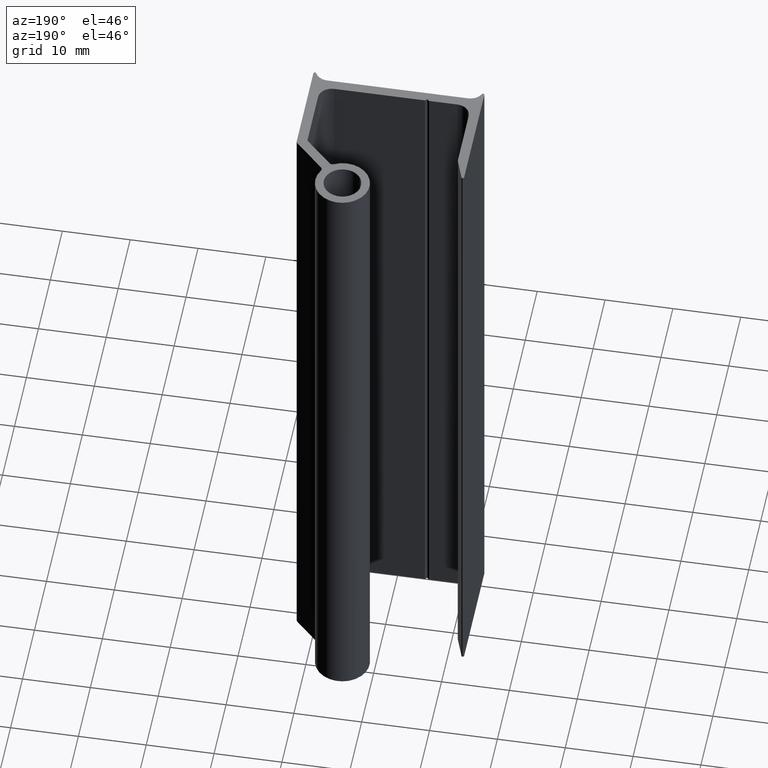
[diagram: clean part render]
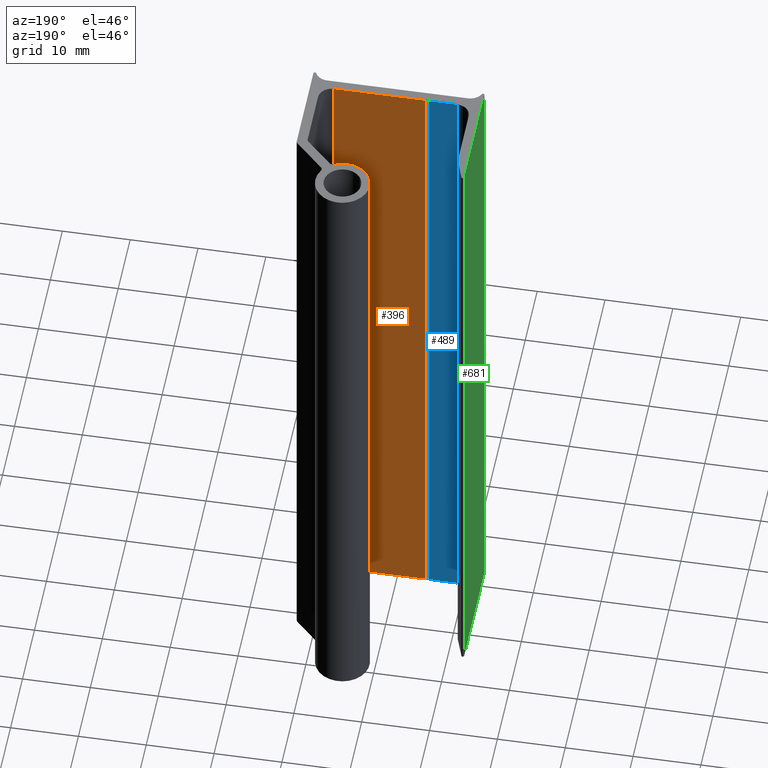
[diagram: same view with three faces highlighted in distinct colors, each labeled with its STEP entity id]
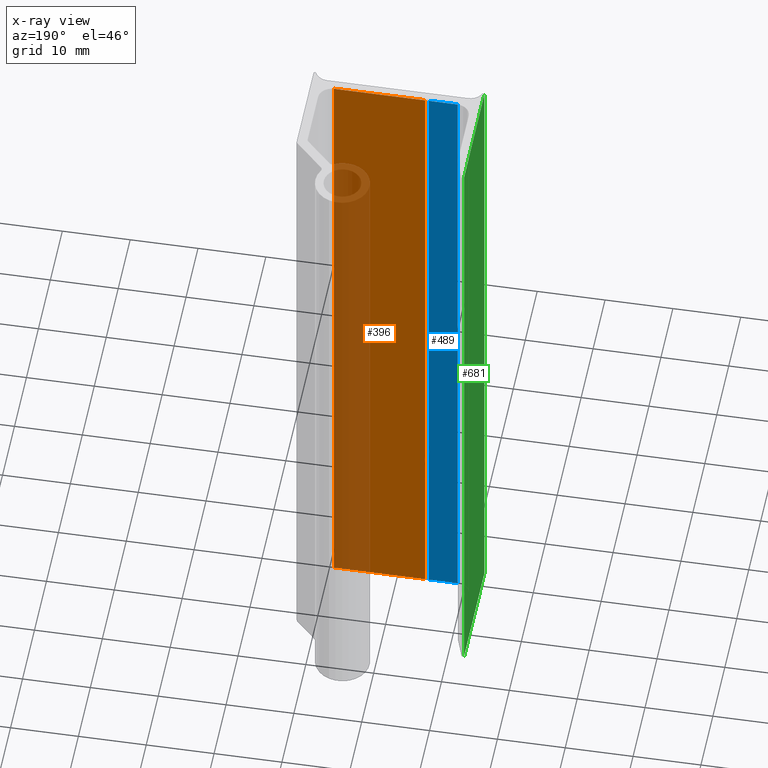
[diagram: x-ray of the same camera — body ghosted, the three highlighted faces saturated]
A machine part, auxiliary view with three faces highlighted in distinct colors.
The next image is the same camera in x-ray (body ghosted, the three faces saturated) — at least one of them is partly hidden behind the body in this view.
Their STEP definitions:

[orange] entity #396 — the highlighted planar face has unit normal (0, 1, 0).
#338=CARTESIAN_POINT('',(9.099999999986380,1.499999999995794,0.0));
#339=VERTEX_POINT('',#338);
#347=CARTESIAN_POINT('',(9.099999999986380,1.499999999995794,100.0));
#348=VERTEX_POINT('',#347);
#349=CARTESIAN_POINT('',(9.099999999986380,1.499999999995794,0.0));
#350=DIRECTION('',(0.0,0.0,1.0));
#351=VECTOR('',#350,100.0);
#352=LINE('',#349,#351);
#353=EDGE_CURVE('',#339,#348,#352,.T.);
#366=CARTESIAN_POINT('',(9.099999999986380,1.499999999995794,0.0));
#367=DIRECTION('',(0.0,1.0,0.0));
#368=DIRECTION('',(-1.0,0.0,0.0));
#369=AXIS2_PLACEMENT_3D('',#366,#367,#368);
#370=PLANE('',#369);
#371=CARTESIAN_POINT('',(-4.300000000013938,1.499999999995794,0.0));
#372=VERTEX_POINT('',#371);
#373=CARTESIAN_POINT('',(9.099999999986380,1.499999999995794,0.0));
#374=DIRECTION('',(-1.0,0.0,0.0));
#375=VECTOR('',#374,13.400000000000318);
#376=LINE('',#373,#375);
#377=EDGE_CURVE('',#339,#372,#376,.T.);
#378=ORIENTED_EDGE('',*,*,#377,.T.);
#379=CARTESIAN_POINT('',(-4.300000000013938,1.499999999995794,100.0));
#380=VERTEX_POINT('',#379);
#381=CARTESIAN_POINT('',(-4.300000000013938,1.499999999995794,0.0));
#382=DIRECTION('',(0.0,0.0,1.0));
#383=VECTOR('',#382,100.0);
#384=LINE('',#381,#383);
#385=EDGE_CURVE('',#372,#380,#384,.T.);
#386=ORIENTED_EDGE('',*,*,#385,.T.);
#387=CARTESIAN_POINT('',(9.099999999986380,1.499999999995794,100.0));
#388=DIRECTION('',(-1.0,0.0,0.0));
#389=VECTOR('',#388,13.400000000000318);
#390=LINE('',#387,#389);
#391=EDGE_CURVE('',#348,#380,#390,.T.);
#392=ORIENTED_EDGE('',*,*,#391,.F.);
#393=ORIENTED_EDGE('',*,*,#353,.F.);
#394=EDGE_LOOP('',(#378,#386,#392,#393));
#395=FACE_OUTER_BOUND('',#394,.T.);
#396=ADVANCED_FACE('',(#395),#370,.T.);

[blue] entity #489 — the highlighted planar face has unit normal (0, 1, 0).
#433=CARTESIAN_POINT('',(-4.899999999982811,1.499999999992326,0.0));
#434=VERTEX_POINT('',#433);
#441=CARTESIAN_POINT('',(-4.899999999982811,1.499999999992326,100.0));
#442=VERTEX_POINT('',#441);
#443=CARTESIAN_POINT('',(-4.899999999982811,1.499999999992326,0.0));
#444=DIRECTION('',(0.0,0.0,1.0));
#445=VECTOR('',#444,100.0);
#446=LINE('',#443,#445);
#447=EDGE_CURVE('',#434,#442,#446,.T.);
#459=CARTESIAN_POINT('',(-4.899999999982811,1.499999999992326,0.0));
#460=DIRECTION('',(0.0,1.0,0.0));
#461=DIRECTION('',(-1.0,0.0,0.0));
#462=AXIS2_PLACEMENT_3D('',#459,#460,#461);
#463=PLANE('',#462);
#464=CARTESIAN_POINT('',(-9.099999999982742,1.499999999992440,0.0));
#465=VERTEX_POINT('',#464);
#466=CARTESIAN_POINT('',(-4.899999999982811,1.499999999992326,0.0));
#467=DIRECTION('',(-1.0,0.0,0.0));
#468=VECTOR('',#467,4.199999999999932);
#469=LINE('',#466,#468);
#470=EDGE_CURVE('',#434,#465,#469,.T.);
#471=ORIENTED_EDGE('',*,*,#470,.T.);
#472=CARTESIAN_POINT('',(-9.099999999982742,1.499999999992440,100.0));
#473=VERTEX_POINT('',#472);
#474=CARTESIAN_POINT('',(-9.099999999982742,1.499999999992440,0.0));
#475=DIRECTION('',(0.0,0.0,1.0));
#476=VECTOR('',#475,100.0);
#477=LINE('',#474,#476);
#478=EDGE_CURVE('',#465,#473,#477,.T.);
#479=ORIENTED_EDGE('',*,*,#478,.T.);
#480=CARTESIAN_POINT('',(-4.899999999982811,1.499999999992326,100.0));
#481=DIRECTION('',(-1.0,0.0,0.0));
#482=VECTOR('',#481,4.199999999999932);
#483=LINE('',#480,#482);
#484=EDGE_CURVE('',#442,#473,#483,.T.);
#485=ORIENTED_EDGE('',*,*,#484,.F.);
#486=ORIENTED_EDGE('',*,*,#447,.F.);
#487=EDGE_LOOP('',(#471,#479,#485,#486));
#488=FACE_OUTER_BOUND('',#487,.T.);
#489=ADVANCED_FACE('',(#488),#463,.T.);

[green] entity #681 — the highlighted planar face has unit normal (-1, 0, 0).
#623=CARTESIAN_POINT('',(-12.599999999982742,15.798744151822405,0.0));
#624=VERTEX_POINT('',#623);
#632=CARTESIAN_POINT('',(-12.599999999982742,15.798744151822405,100.0));
#633=VERTEX_POINT('',#632);
#634=CARTESIAN_POINT('',(-12.599999999982742,15.798744151822405,0.0));
#635=DIRECTION('',(0.0,0.0,1.0));
#636=VECTOR('',#635,100.0);
#637=LINE('',#634,#636);
#638=EDGE_CURVE('',#624,#633,#637,.T.);
#651=CARTESIAN_POINT('',(-12.599999999982742,15.798744151822405,0.0));
#652=DIRECTION('',(-1.0,0.0,0.0));
#653=DIRECTION('',(0.0,-1.0,0.0));
#654=AXIS2_PLACEMENT_3D('',#651,#652,#653);
#655=PLANE('',#654);
#656=CARTESIAN_POINT('',(-12.599999999982856,-1.100000000007697,0.0));
#657=VERTEX_POINT('',#656);
#658=CARTESIAN_POINT('',(-12.599999999982742,15.798744151822405,0.0));
#659=DIRECTION('',(0.0,-1.0,0.0));
#660=VECTOR('',#659,16.898744151830101);
#661=LINE('',#658,#660);
#662=EDGE_CURVE('',#624,#657,#661,.T.);
#663=ORIENTED_EDGE('',*,*,#662,.T.);
#664=CARTESIAN_POINT('',(-12.599999999982856,-1.100000000007697,100.0));
#665=VERTEX_POINT('',#664);
#666=CARTESIAN_POINT('',(-12.599999999982856,-1.100000000007697,0.0));
#667=DIRECTION('',(0.0,0.0,1.0));
#668=VECTOR('',#667,100.0);
#669=LINE('',#666,#668);
#670=EDGE_CURVE('',#657,#665,#669,.T.);
#671=ORIENTED_EDGE('',*,*,#670,.T.);
#672=CARTESIAN_POINT('',(-12.599999999982742,15.798744151822405,100.0));
#673=DIRECTION('',(0.0,-1.0,0.0));
#674=VECTOR('',#673,16.898744151830101);
#675=LINE('',#672,#674);
#676=EDGE_CURVE('',#633,#665,#675,.T.);
#677=ORIENTED_EDGE('',*,*,#676,.F.);
#678=ORIENTED_EDGE('',*,*,#638,.F.);
#679=EDGE_LOOP('',(#663,#671,#677,#678));
#680=FACE_OUTER_BOUND('',#679,.T.);
#681=ADVANCED_FACE('',(#680),#655,.T.);